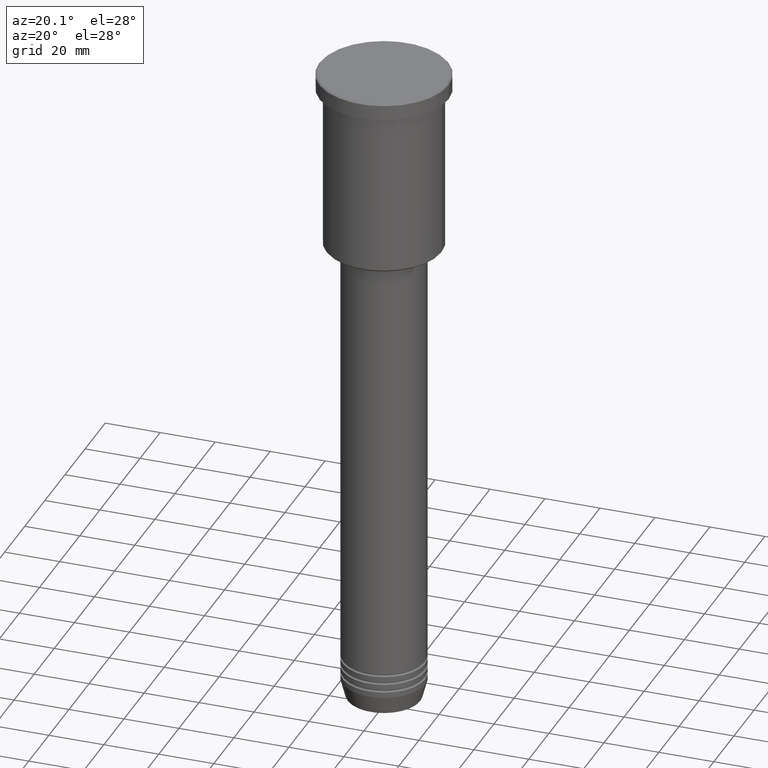
[diagram: clean part render]
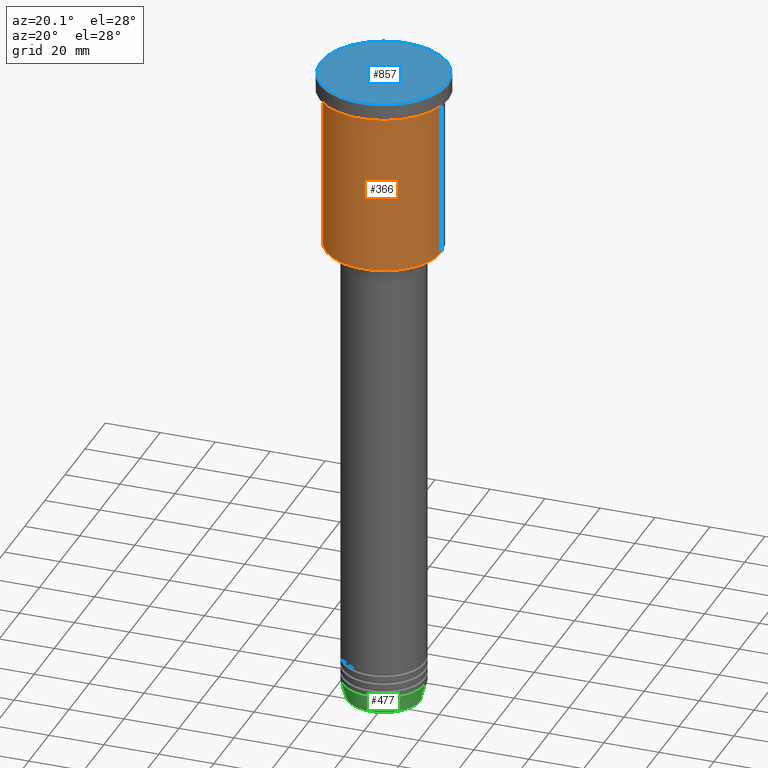
[diagram: same view with three faces highlighted in distinct colors, each labeled with its STEP entity id]
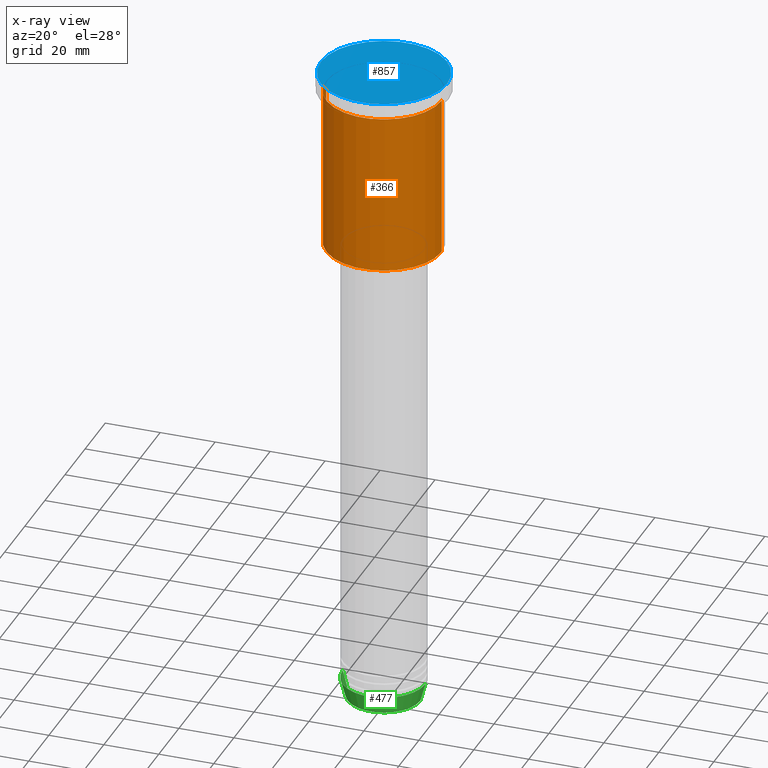
[diagram: x-ray of the same camera — body ghosted, the three highlighted faces saturated]
A machine part, auxiliary view with three faces highlighted in distinct colors.
The next image is the same camera in x-ray (body ghosted, the three faces saturated) — at least one of them is partly hidden behind the body in this view.
Their STEP definitions:

[orange] entity #366 — the highlighted cylindrical surface (partial cylindrical patch) has radius 21 mm, axis along (-0, -0, 1).
#3 = EDGE_LOOP ( 'NONE', ( #816, #720, #536, #229 ) ) ;
#71 = CIRCLE ( 'NONE', #174, 21.00000000000000000 ) ;
#82 = VERTEX_POINT ( 'NONE', #888 ) ;
#136 = DIRECTION ( 'NONE',  ( -1.000000000000000000, 0.000000000000000000, 0.000000000000000000 ) ) ;
#158 = DIRECTION ( 'NONE',  ( 1.000000000000000000, 0.000000000000000000, 0.000000000000000000 ) ) ;
#174 = AXIS2_PLACEMENT_3D ( 'NONE', #510, #1153, #328 ) ;
#205 = CARTESIAN_POINT ( 'NONE',  ( 0.000000000000000000, 0.000000000000000000, -65.49999999999994316 ) ) ;
#229 = ORIENTED_EDGE ( 'NONE', *, *, #285, .F. ) ;
#238 = AXIS2_PLACEMENT_3D ( 'NONE', #698, #957, #158 ) ;
#250 = FACE_OUTER_BOUND ( 'NONE', #3, .T. ) ;
#285 = EDGE_CURVE ( 'NONE', #997, #842, #71, .T. ) ;
#287 = VERTEX_POINT ( 'NONE', #410 ) ;
#294 = VECTOR ( 'NONE', #625, 1000.000000000000000 ) ;
#312 = CIRCLE ( 'NONE', #979, 21.00000000000000000 ) ;
#326 = LINE ( 'NONE', #422, #977 ) ;
#328 = DIRECTION ( 'NONE',  ( 1.000000000000000000, 0.000000000000000000, 0.000000000000000000 ) ) ;
#342 = LINE ( 'NONE', #718, #294 ) ;
#366 = ADVANCED_FACE ( 'NONE', ( #250 ), #618, .T. ) ;
#410 = CARTESIAN_POINT ( 'NONE',  ( 21.00000000000000000, 0.000000000000000000, -65.49999999999994316 ) ) ;
#422 = CARTESIAN_POINT ( 'NONE',  ( 21.00000000000000000, 0.000000000000000000, 0.000000000000000000 ) ) ;
#449 = CARTESIAN_POINT ( 'NONE',  ( 21.00000000000000000, 0.000000000000000000, -6.999999999999994671 ) ) ;
#469 = CARTESIAN_POINT ( 'NONE',  ( -21.00000000000000000, 2.571758278209441661E-15, -6.999999999999994671 ) ) ;
#510 = CARTESIAN_POINT ( 'NONE',  ( 0.000000000000000000, 0.000000000000000000, -6.999999999999994671 ) ) ;
#536 = ORIENTED_EDGE ( 'NONE', *, *, #798, .T. ) ;
#618 = CYLINDRICAL_SURFACE ( 'NONE', #238, 21.00000000000000000 ) ;
#625 = DIRECTION ( 'NONE',  ( -0.000000000000000000, -0.000000000000000000, 1.000000000000000000 ) ) ;
#698 = CARTESIAN_POINT ( 'NONE',  ( 0.000000000000000000, 0.000000000000000000, 0.000000000000000000 ) ) ;
#718 = CARTESIAN_POINT ( 'NONE',  ( -21.00000000000000000, 2.571758278209441661E-15, 0.000000000000000000 ) ) ;
#720 = ORIENTED_EDGE ( 'NONE', *, *, #1105, .T. ) ;
#798 = EDGE_CURVE ( 'NONE', #287, #842, #326, .T. ) ;
#816 = ORIENTED_EDGE ( 'NONE', *, *, #965, .F. ) ;
#833 = DIRECTION ( 'NONE',  ( -0.000000000000000000, -0.000000000000000000, 1.000000000000000000 ) ) ;
#842 = VERTEX_POINT ( 'NONE', #449 ) ;
#888 = CARTESIAN_POINT ( 'NONE',  ( -21.00000000000000000, 2.571758278209441661E-15, -65.49999999999994316 ) ) ;
#957 = DIRECTION ( 'NONE',  ( -0.000000000000000000, -0.000000000000000000, 1.000000000000000000 ) ) ;
#965 = EDGE_CURVE ( 'NONE', #82, #997, #342, .T. ) ;
#977 = VECTOR ( 'NONE', #1150, 1000.000000000000000 ) ;
#979 = AXIS2_PLACEMENT_3D ( 'NONE', #205, #833, #136 ) ;
#997 = VERTEX_POINT ( 'NONE', #469 ) ;
#1105 = EDGE_CURVE ( 'NONE', #82, #287, #312, .T. ) ;
#1150 = DIRECTION ( 'NONE',  ( -0.000000000000000000, -0.000000000000000000, 1.000000000000000000 ) ) ;
#1153 = DIRECTION ( 'NONE',  ( -0.000000000000000000, -0.000000000000000000, 1.000000000000000000 ) ) ;

[blue] entity #857 — the highlighted planar face has unit normal (0, -0, 1).
#13 = AXIS2_PLACEMENT_3D ( 'NONE', #633, #814, #629 ) ;
#21 = ORIENTED_EDGE ( 'NONE', *, *, #402, .T. ) ;
#33 = VERTEX_POINT ( 'NONE', #1113 ) ;
#45 = EDGE_LOOP ( 'NONE', ( #673, #21 ) ) ;
#177 = CIRCLE ( 'NONE', #826, 22.99999999999996803 ) ;
#357 = DIRECTION ( 'NONE',  ( 1.000000000000000000, 0.000000000000000000, 0.000000000000000000 ) ) ;
#402 = EDGE_CURVE ( 'NONE', #954, #33, #917, .T. ) ;
#431 = FACE_OUTER_BOUND ( 'NONE', #45, .T. ) ;
#547 = AXIS2_PLACEMENT_3D ( 'NONE', #796, #1179, #357 ) ;
#629 = DIRECTION ( 'NONE',  ( 1.000000000000000000, 0.000000000000000000, 0.000000000000000000 ) ) ;
#633 = CARTESIAN_POINT ( 'NONE',  ( 0.000000000000000000, 0.000000000000000000, 0.000000000000000000 ) ) ;
#673 = ORIENTED_EDGE ( 'NONE', *, *, #1103, .T. ) ;
#796 = CARTESIAN_POINT ( 'NONE',  ( 0.000000000000000000, 0.000000000000000000, 0.000000000000000000 ) ) ;
#814 = DIRECTION ( 'NONE',  ( -0.000000000000000000, -0.000000000000000000, 1.000000000000000000 ) ) ;
#826 = AXIS2_PLACEMENT_3D ( 'NONE', #916, #1111, #1021 ) ;
#857 = ADVANCED_FACE ( 'NONE', ( #431 ), #1171, .T. ) ;
#916 = CARTESIAN_POINT ( 'NONE',  ( 0.000000000000000000, 0.000000000000000000, 0.000000000000000000 ) ) ;
#917 = CIRCLE ( 'NONE', #13, 22.99999999999996803 ) ;
#954 = VERTEX_POINT ( 'NONE', #1081 ) ;
#1021 = DIRECTION ( 'NONE',  ( 1.000000000000000000, 0.000000000000000000, 0.000000000000000000 ) ) ;
#1081 = CARTESIAN_POINT ( 'NONE',  ( 22.99999999999996803, 2.847303808017594561E-15, 0.000000000000000000 ) ) ;
#1103 = EDGE_CURVE ( 'NONE', #33, #954, #177, .T. ) ;
#1111 = DIRECTION ( 'NONE',  ( -0.000000000000000000, -0.000000000000000000, 1.000000000000000000 ) ) ;
#1113 = CARTESIAN_POINT ( 'NONE',  ( -22.99999999999996803, 0.000000000000000000, 0.000000000000000000 ) ) ;
#1171 = PLANE ( 'NONE',  #547 ) ;
#1179 = DIRECTION ( 'NONE',  ( 0.000000000000000000, -0.000000000000000000, 1.000000000000000000 ) ) ;

[green] entity #477 — the highlighted conical surface has half-angle 15 deg.
#16 = AXIS2_PLACEMENT_3D ( 'NONE', #926, #749, #910 ) ;
#60 = DIRECTION ( 'NONE',  ( -0.000000000000000000, -0.000000000000000000, 1.000000000000000000 ) ) ;
#65 = CARTESIAN_POINT ( 'NONE',  ( 0.000000000000000000, 0.000000000000000000, -234.0000000000000000 ) ) ;
#104 = DIRECTION ( 'NONE',  ( -0.000000000000000000, -0.000000000000000000, 1.000000000000000000 ) ) ;
#113 = CARTESIAN_POINT ( 'NONE',  ( 13.22365507213719305, 0.000000000000000000, -240.6294095225512422 ) ) ;
#121 = CARTESIAN_POINT ( 'NONE',  ( -15.00000000000000000, 1.836970198721029589E-15, -234.0000000000000000 ) ) ;
#137 = VECTOR ( 'NONE', #612, 1000.000000000000000 ) ;
#142 = ORIENTED_EDGE ( 'NONE', *, *, #1012, .T. ) ;
#237 = CARTESIAN_POINT ( 'NONE',  ( -13.22365507213719305, 1.728200442216588583E-15, -240.6294095225512422 ) ) ;
#253 = EDGE_CURVE ( 'NONE', #1104, #742, #690, .T. ) ;
#264 = FACE_OUTER_BOUND ( 'NONE', #613, .T. ) ;
#318 = CARTESIAN_POINT ( 'NONE',  ( 15.00000000000000000, 0.000000000000000000, -234.0000000000000000 ) ) ;
#321 = DIRECTION ( 'NONE',  ( 1.000000000000000000, 0.000000000000000000, 0.000000000000000000 ) ) ;
#353 = AXIS2_PLACEMENT_3D ( 'NONE', #65, #60, #321 ) ;
#379 = LINE ( 'NONE', #121, #1060 ) ;
#428 = CIRCLE ( 'NONE', #16, 13.22365507213719305 ) ;
#451 = CARTESIAN_POINT ( 'NONE',  ( 0.000000000000000000, 0.000000000000000000, -234.0000000000000000 ) ) ;
#477 = ADVANCED_FACE ( 'NONE', ( #264 ), #544, .T. ) ;
#544 = CONICAL_SURFACE ( 'NONE', #996, 15.00000000000000000, 0.2617993877991500740 ) ;
#612 = DIRECTION ( 'NONE',  ( 0.2588190451025213501, 0.000000000000000000, 0.9659258262890680902 ) ) ;
#613 = EDGE_LOOP ( 'NONE', ( #669, #142, #1019, #782 ) ) ;
#664 = VERTEX_POINT ( 'NONE', #671 ) ;
#669 = ORIENTED_EDGE ( 'NONE', *, *, #1064, .F. ) ;
#671 = CARTESIAN_POINT ( 'NONE',  ( -15.00000000000000000, 1.836970198721029589E-15, -234.0000000000000000 ) ) ;
#674 = DIRECTION ( 'NONE',  ( -0.2588190451025213501, 3.169619151431772337E-17, 0.9659258262890680902 ) ) ;
#690 = LINE ( 'NONE', #318, #137 ) ;
#739 = CIRCLE ( 'NONE', #353, 15.00000000000000000 ) ;
#742 = VERTEX_POINT ( 'NONE', #1038 ) ;
#749 = DIRECTION ( 'NONE',  ( -0.000000000000000000, -0.000000000000000000, 1.000000000000000000 ) ) ;
#782 = ORIENTED_EDGE ( 'NONE', *, *, #832, .F. ) ;
#832 = EDGE_CURVE ( 'NONE', #664, #742, #739, .T. ) ;
#835 = VERTEX_POINT ( 'NONE', #237 ) ;
#910 = DIRECTION ( 'NONE',  ( 1.000000000000000000, 0.000000000000000000, 0.000000000000000000 ) ) ;
#926 = CARTESIAN_POINT ( 'NONE',  ( 0.000000000000000000, 0.000000000000000000, -240.6294095225512422 ) ) ;
#996 = AXIS2_PLACEMENT_3D ( 'NONE', #451, #104, #1074 ) ;
#1012 = EDGE_CURVE ( 'NONE', #835, #1104, #428, .T. ) ;
#1019 = ORIENTED_EDGE ( 'NONE', *, *, #253, .T. ) ;
#1038 = CARTESIAN_POINT ( 'NONE',  ( 15.00000000000000000, 0.000000000000000000, -234.0000000000000000 ) ) ;
#1060 = VECTOR ( 'NONE', #674, 1000.000000000000000 ) ;
#1064 = EDGE_CURVE ( 'NONE', #835, #664, #379, .T. ) ;
#1074 = DIRECTION ( 'NONE',  ( 1.000000000000000000, 0.000000000000000000, 0.000000000000000000 ) ) ;
#1104 = VERTEX_POINT ( 'NONE', #113 ) ;